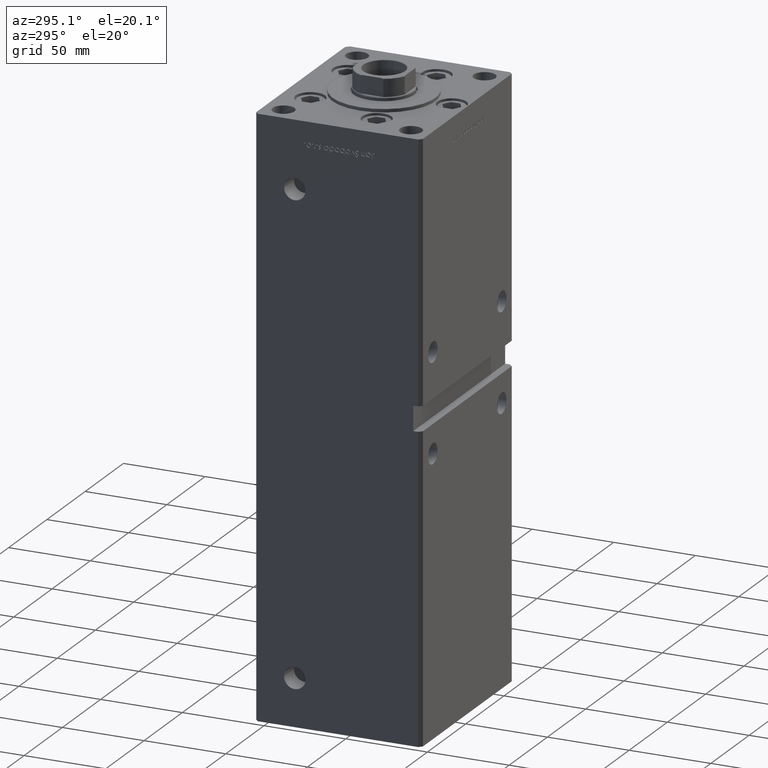
[diagram: clean part render]
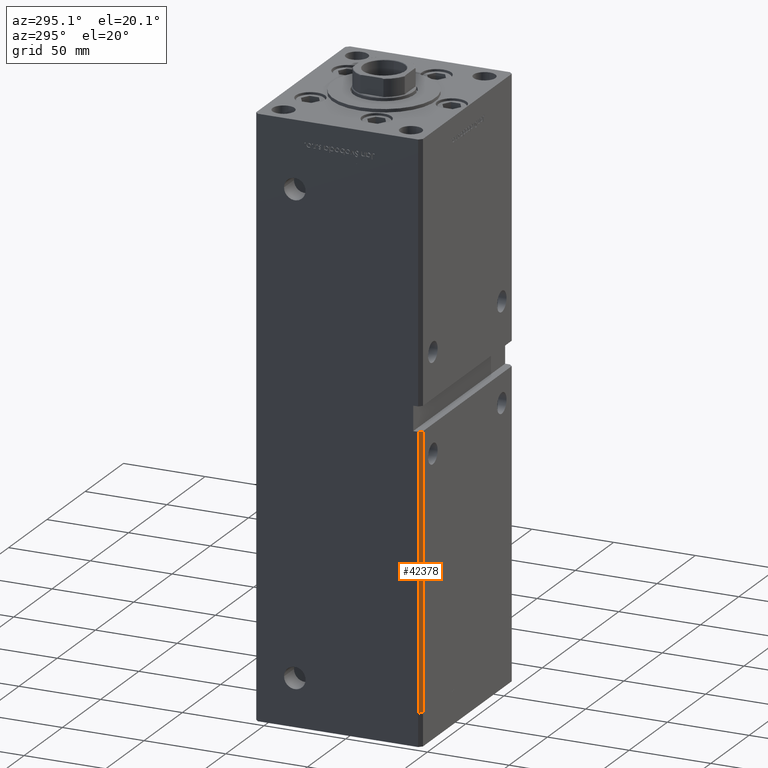
[diagram: same view with one face highlighted and labeled with its STEP entity id]
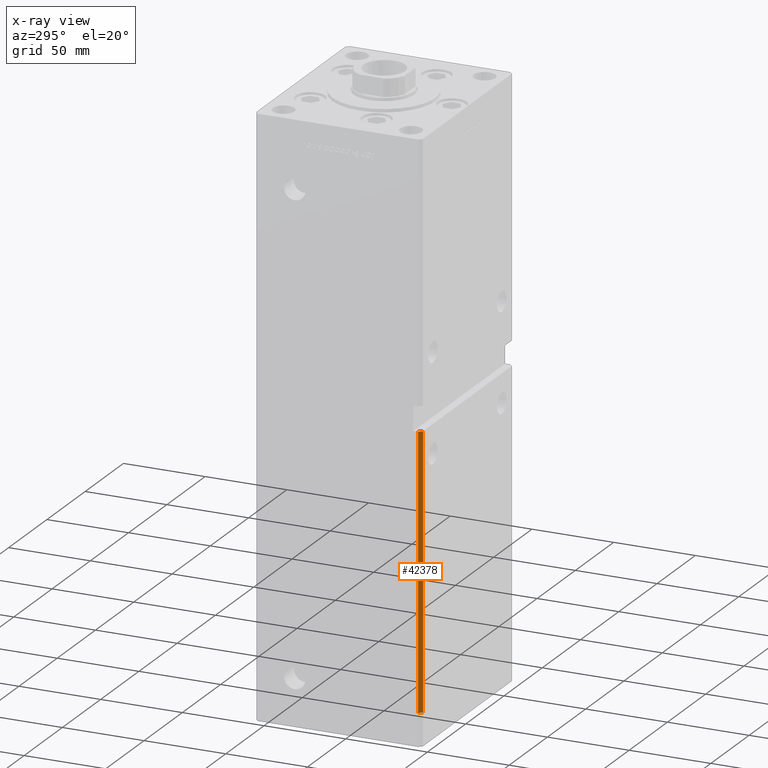
[diagram: x-ray of the same camera — body ghosted, the highlighted face saturated]
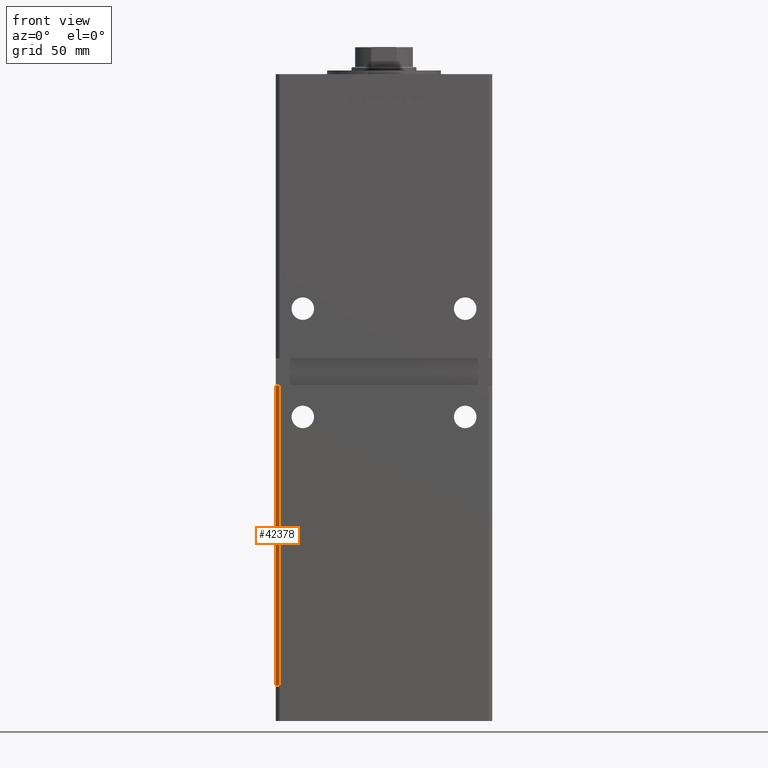
[diagram: same view with one face highlighted and labeled with its STEP entity id]
A machine part, auxiliary view. The second image highlights one B-rep face of the part: STEP entity #42378.
The next image is the same camera in x-ray: the body ghosted, the highlighted face saturated — about 0% of this face is hidden behind the body in this view.
A second angle (front view) of the same face is appended — the face is thin or edge-on in the first view.
In plain terms, the highlighted planar face has unit normal (0.7071, 0.7071, 0).
Its self-contained STEP definition (entity closure, byte-faithful):
#880 = FACE_OUTER_BOUND ( 'NONE', #49115, .T. ) ;
#952 = CARTESIAN_POINT ( 'NONE',  ( -59.99999999999998579, -48.99999999999985789, 166.0000000000000568 ) ) ;
#4407 = VECTOR ( 'NONE', #40943, 1000.000000000000000 ) ;
#7066 = VECTOR ( 'NONE', #21253, 1000.000000000000000 ) ;
#7740 = ORIENTED_EDGE ( 'NONE', *, *, #41414, .T. ) ;
#7985 = CARTESIAN_POINT ( 'NONE',  ( -57.99999999999997868, -50.99999999999999289, 166.0000000000000568 ) ) ;
#9087 = VERTEX_POINT ( 'NONE', #7985 ) ;
#9145 = CARTESIAN_POINT ( 'NONE',  ( -57.99999999999997868, -50.99999999999999289, 318.5000000000000000 ) ) ;
#9760 = LINE ( 'NONE', #37971, #48549 ) ;
#13572 = VERTEX_POINT ( 'NONE', #49187 ) ;
#15887 = AXIS2_PLACEMENT_3D ( 'NONE', #34177, #21277, #25314 ) ;
#18057 = PLANE ( 'NONE',  #15887 ) ;
#20280 = LINE ( 'NONE', #24581, #4407 ) ;
#21253 = DIRECTION ( 'NONE',  ( -0.000000000000000000, -0.000000000000000000, -1.000000000000000000 ) ) ;
#21277 = DIRECTION ( 'NONE',  ( 0.7071067811865475727, 0.7071067811865475727, -0.000000000000000000 ) ) ;
#21290 = EDGE_CURVE ( 'NONE', #33845, #26380, #20280, .T. ) ;
#21863 = DIRECTION ( 'NONE',  ( -0.7071067811865474617, 0.7071067811865474617, 0.000000000000000000 ) ) ;
#23861 = EDGE_CURVE ( 'NONE', #9087, #13572, #48925, .T. ) ;
#24581 = CARTESIAN_POINT ( 'NONE',  ( -59.99999999999998579, -48.99999999999998579, 318.5000000000000000 ) ) ;
#25314 = DIRECTION ( 'NONE',  ( -0.7071067811865474617, 0.7071067811865474617, 0.000000000000000000 ) ) ;
#25805 = ORIENTED_EDGE ( 'NONE', *, *, #46267, .T. ) ;
#25899 = DIRECTION ( 'NONE',  ( 0.7071067811865474617, -0.7071067811865474617, 0.000000000000000000 ) ) ;
#26380 = VERTEX_POINT ( 'NONE', #49751 ) ;
#26427 = LINE ( 'NONE', #41726, #35568 ) ;
#33845 = VERTEX_POINT ( 'NONE', #952 ) ;
#34177 = CARTESIAN_POINT ( 'NONE',  ( -59.99999999999998579, -48.99999999999998579, 318.5000000000000000 ) ) ;
#35568 = VECTOR ( 'NONE', #21863, 1000.000000000000114 ) ;
#37933 = ORIENTED_EDGE ( 'NONE', *, *, #21290, .T. ) ;
#37971 = CARTESIAN_POINT ( 'NONE',  ( -59.99999999999998579, -48.99999999999998579, 0.000000000000000000 ) ) ;
#40943 = DIRECTION ( 'NONE',  ( -0.000000000000000000, -0.000000000000000000, -1.000000000000000000 ) ) ;
#41414 = EDGE_CURVE ( 'NONE', #9087, #33845, #26427, .T. ) ;
#41726 = CARTESIAN_POINT ( 'NONE',  ( -59.99999999999998579, -48.99999999999998579, 166.0000000000000568 ) ) ;
#42378 = ADVANCED_FACE ( 'NONE', ( #880 ), #18057, .F. ) ;
#46267 = EDGE_CURVE ( 'NONE', #26380, #13572, #9760, .T. ) ;
#48549 = VECTOR ( 'NONE', #25899, 1000.000000000000114 ) ;
#48925 = LINE ( 'NONE', #9145, #7066 ) ;
#49115 = EDGE_LOOP ( 'NONE', ( #50349, #7740, #37933, #25805 ) ) ;
#49187 = CARTESIAN_POINT ( 'NONE',  ( -57.99999999999997868, -50.99999999999999289, 0.000000000000000000 ) ) ;
#49751 = CARTESIAN_POINT ( 'NONE',  ( -59.99999999999998579, -48.99999999999998579, 0.000000000000000000 ) ) ;
#50349 = ORIENTED_EDGE ( 'NONE', *, *, #23861, .F. ) ;